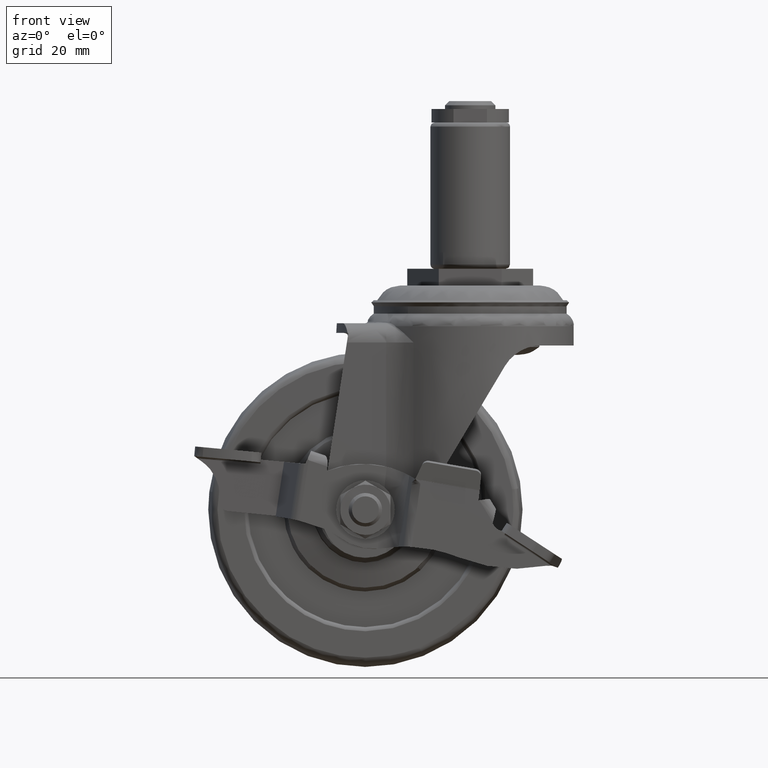
[diagram: clean part render]
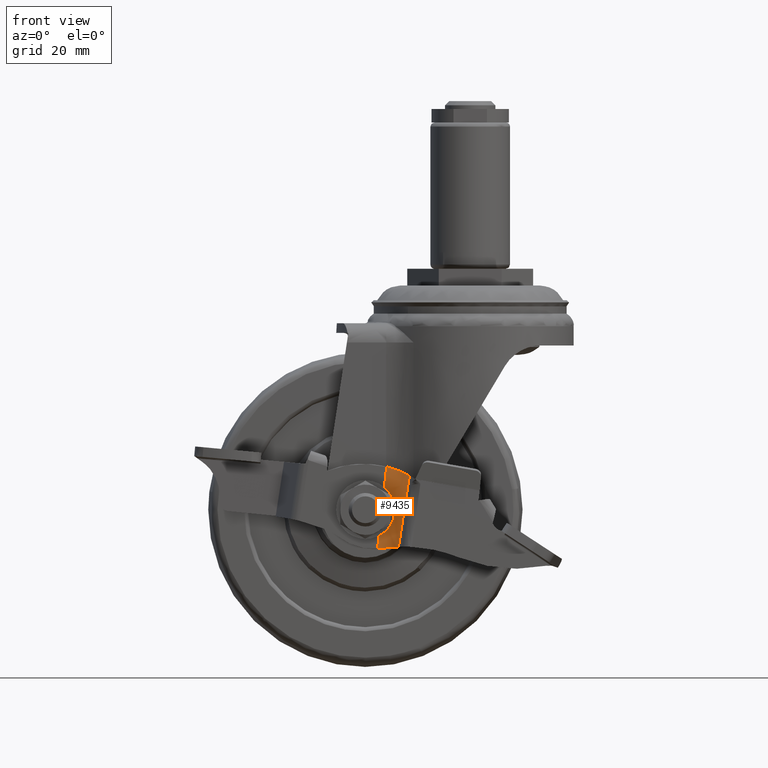
[diagram: same view with one face highlighted and labeled with its STEP entity id]
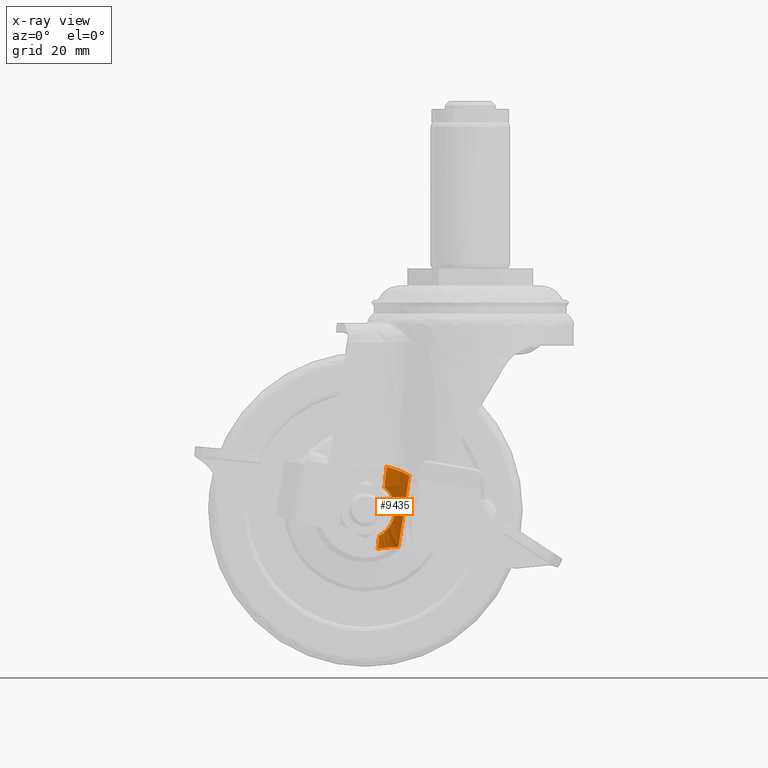
[diagram: x-ray of the same camera — body ghosted, the highlighted face saturated]
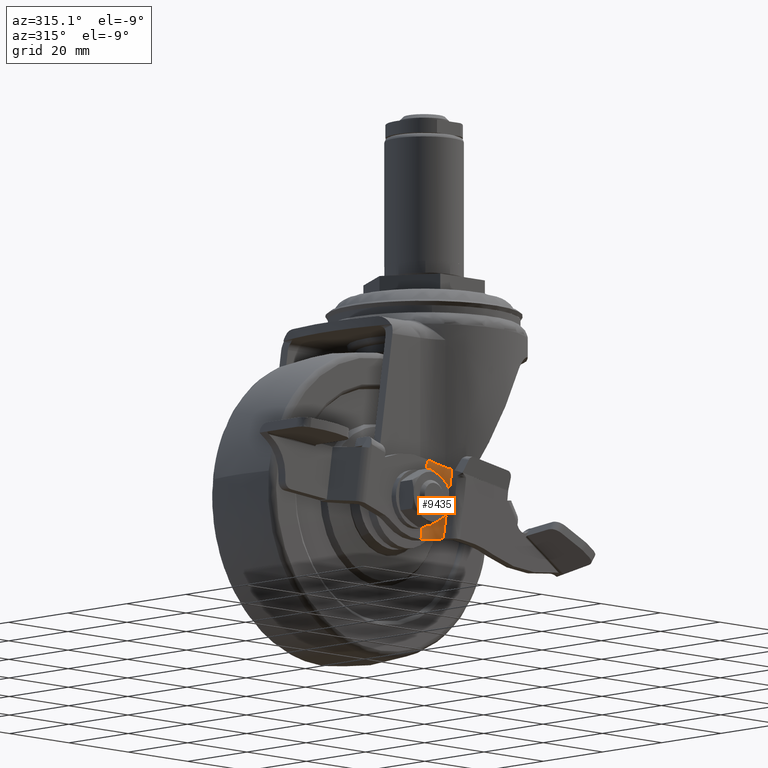
[diagram: same view with one face highlighted and labeled with its STEP entity id]
A machine part, front view. The second image highlights one B-rep face of the part: STEP entity #9435.
The next image is the same camera in x-ray: the body ghosted, the highlighted face saturated — about 0% of this face is hidden behind the body in this view.
A second angle (auxiliary view) of the same face is appended — the face is thin or edge-on in the first view.
In plain terms, the highlighted face is a freeform B-spline surface patch.
Its self-contained STEP definition (entity closure, byte-faithful):
#6737=CARTESIAN_POINT('',(-21.745604013476498,-21.108498999999998,-61.742636202991299));
#6738=VERTEX_POINT('',#6737);
#6739=CARTESIAN_POINT('',(-20.459070457783749,-21.108498999999998,-50.120264049916102));
#6740=VERTEX_POINT('',#6739);
#6741=CARTESIAN_POINT('',(-21.745604013476498,-21.108498999999998,-61.742636202991299));
#6742=CARTESIAN_POINT('',(-21.485670559131389,-21.108499000000009,-61.607128324095761));
#6743=CARTESIAN_POINT('',(-21.237933225885971,-21.122829572066902,-61.457436227735407));
#6744=CARTESIAN_POINT('',(-20.764866664508240,-21.171514825453681,-61.130971359457739));
#6745=CARTESIAN_POINT('',(-20.539548120724060,-21.205922414813660,-60.954192687952322));
#6746=CARTESIAN_POINT('',(-20.217901638973341,-21.267438432920141,-60.668529527498833));
#6747=CARTESIAN_POINT('',(-20.113417334435610,-21.289602961595619,-60.569881392575383));
#6748=CARTESIAN_POINT('',(-19.909940264450000,-21.336440625701812,-60.365560540236793));
#6749=CARTESIAN_POINT('',(-19.811666877701299,-21.360950088913459,-60.260593173592852));
#6750=CARTESIAN_POINT('',(-19.528114402450530,-21.436106407267172,-59.938677710416577));
#6751=CARTESIAN_POINT('',(-19.353475128825821,-21.488499181639710,-59.714177583846059));
#6752=CARTESIAN_POINT('',(-19.031845494955419,-21.591383280417968,-59.244818771702448));
#6753=CARTESIAN_POINT('',(-18.884854956202300,-21.641893313666849,-58.999964266961513));
#6754=CARTESIAN_POINT('',(-18.718761479908110,-21.699962907650988,-58.680069095515996));
#6755=CARTESIAN_POINT('',(-18.686470383820570,-21.711308966750050,-58.615465085497277));
#6756=CARTESIAN_POINT('',(-18.624102208808619,-21.733249498856779,-58.485750537069080));
#6757=CARTESIAN_POINT('',(-18.593970390725829,-21.743863086211469,-58.420536010474912));
#6758=CARTESIAN_POINT('',(-18.506697014237300,-21.774521059251001,-58.223820865732819));
#6759=CARTESIAN_POINT('',(-18.452674147487478,-21.793380377052639,-58.091249513053533));
#6760=CARTESIAN_POINT('',(-18.302932927468770,-21.844400962666828,-57.689221792678353));
#6761=CARTESIAN_POINT('',(-18.219490266964439,-21.870965321006150,-57.415463995793850));
#6762=CARTESIAN_POINT('',(-18.119254635683621,-21.897040452663340,-56.995868266653417));
#6763=CARTESIAN_POINT('',(-18.090010361922371,-21.903446554365161,-56.854506782694557));
#6764=CARTESIAN_POINT('',(-18.052559912279250,-21.909396797219848,-56.640148053195723));
#6765=CARTESIAN_POINT('',(-18.041146621709121,-21.910771089252890,-56.568308857656397));
#6766=CARTESIAN_POINT('',(-18.020498752758630,-21.912271749643448,-56.423843328521492));
#6767=CARTESIAN_POINT('',(-18.011253524858159,-21.912395266381900,-56.351089315960117));
#6768=CARTESIAN_POINT('',(-17.970884507845231,-21.909874528576150,-55.988283195243518));
#6769=CARTESIAN_POINT('',(-17.956940657065910,-21.897816200378919,-55.699340178410111));
#6770=CARTESIAN_POINT('',(-17.964170017800178,-21.856217597230209,-55.123811381886860));
#6771=CARTESIAN_POINT('',(-17.985345633581950,-21.826687673902359,-54.837224870852701));
#6772=CARTESIAN_POINT('',(-18.033869651603911,-21.781215189678200,-54.480285142227743));
#6773=CARTESIAN_POINT('',(-18.044681453355089,-21.771695154751921,-54.408961798784247));
#6774=CARTESIAN_POINT('',(-18.068539173637468,-21.751872445088679,-54.266439602444841));
#6775=CARTESIAN_POINT('',(-18.081608806984399,-21.741552891181911,-54.195132811940923));
#6776=CARTESIAN_POINT('',(-18.123943823625439,-21.709723170542240,-53.982662934077823));
#6777=CARTESIAN_POINT('',(-18.156360631598041,-21.687311085652599,-53.842686052307478));
#6778=CARTESIAN_POINT('',(-18.265895162149562,-21.617583306910610,-53.427467892486924));
#6779=CARTESIAN_POINT('',(-18.355238815074831,-21.567774716585930,-53.156919132834403));
#6780=CARTESIAN_POINT('',(-18.513654434087790,-21.492348519207550,-52.759700565948762));
#6781=CARTESIAN_POINT('',(-18.570540964454619,-21.467087165583969,-52.628733628535052));
#6782=CARTESIAN_POINT('',(-18.662117857604031,-21.429564298219571,-52.434387750299912));
#6783=CARTESIAN_POINT('',(-18.693685632355251,-21.417118398054210,-52.369956844511890));
#6784=CARTESIAN_POINT('',(-18.758938421822229,-21.392444769725689,-52.241791683121882));
#6785=CARTESIAN_POINT('',(-18.792665453350089,-21.380203863978721,-52.177987069543363));
#6786=CARTESIAN_POINT('',(-18.965566606572679,-21.320168083959398,-51.862697844997761));
#6787=CARTESIAN_POINT('',(-19.118149298611421,-21.275604016234450,-51.620962303657670));
#6788=CARTESIAN_POINT('',(-19.451548952707888,-21.199054129606239,-51.157444059211990));
#6789=CARTESIAN_POINT('',(-19.632363244335728,-21.167036168026190,-50.935663938941701));
#6790=CARTESIAN_POINT('',(-19.925696735341539,-21.133079074124741,-50.618010816989212));
#6791=CARTESIAN_POINT('',(-20.027172014495420,-21.124112365713440,-50.514637559361432));
#6792=CARTESIAN_POINT('',(-20.237839407887499,-21.111811225242281,-50.313027536907697));
#6793=CARTESIAN_POINT('',(-20.347063462573150,-21.108498999999998,-50.214806956520803));
#6794=CARTESIAN_POINT('',(-20.459070457783749,-21.108498999999998,-50.120264049916102));
#6795=B_SPLINE_CURVE_WITH_KNOTS('',3,(#6741,#6742,#6743,#6744,#6745,#6746,#6747,#6748,#6749,#6750,#6751,#6752,#6753,#6754,#6755,#6756,#6757,#6758,#6759,#6760,#6761,#6762,#6763,#6764,#6765,#6766,#6767,#6768,#6769,#6770,#6771,#6772,#6773,#6774,#6775,#6776,#6777,#6778,#6779,#6780,#6781,#6782,#6783,#6784,#6785,#6786,#6787,#6788,#6789,#6790,#6791,#6792,#6793,#6794),.UNSPECIFIED.,.F.,.U.,(4,2,2,2,2,2,2,2,2,2,2,2,2,2,2,2,2,2,2,2,2,2,2,2,2,2,4),(0.0,0.062499999999998,0.124999999999996,0.156249999999995,0.187499999999994,0.249999999999993,0.312499999999992,0.328124999999992,0.343749999999991,0.374999999999991,0.437499999999989,0.468749999999989,0.484374999999988,0.499999999999988,0.562499999999988,0.624999999999988,0.640624999999989,0.656249999999990,0.687499999999991,0.749999999999993,0.781249999999994,0.796874999999995,0.812499999999997,0.874999999999998,0.937500000000000,0.968750000000000,1.0),.UNSPECIFIED.);
#6796=EDGE_CURVE('',#6738,#6740,#6795,.T.);
#8390=CARTESIAN_POINT('',(-20.947020642657399,-21.213676028474151,-64.702937689590399));
#8391=VERTEX_POINT('',#8390);
#8432=CARTESIAN_POINT('',(-17.105864167398948,-23.605599016253400,-64.356825589758714));
#8433=VERTEX_POINT('',#8432);
#8441=CARTESIAN_POINT('',(-17.105864167398948,-23.605599016253400,-64.356825589758714));
#8442=CARTESIAN_POINT('',(-17.337932729469610,-23.290645838758518,-64.364890879471801));
#8443=CARTESIAN_POINT('',(-17.596004594315911,-23.003756217377781,-64.376154862070877));
#8444=CARTESIAN_POINT('',(-18.019737535538152,-22.613117676293729,-64.400265173063531));
#8445=CARTESIAN_POINT('',(-18.167129645456470,-22.489567823842439,-64.409508932560698));
#8446=CARTESIAN_POINT('',(-18.397511323584851,-22.314337001757050,-64.425545998525138));
#8447=CARTESIAN_POINT('',(-18.475856595151370,-22.257611721294019,-64.431254095978673));
#8448=CARTESIAN_POINT('',(-18.635692561588460,-22.147581065439191,-64.443462452523377));
#8449=CARTESIAN_POINT('',(-18.717403885811990,-22.094141450705418,-64.449981388619321));
#8450=CARTESIAN_POINT('',(-19.131149295503459,-21.837410367160359,-64.484500072205520));
#8451=CARTESIAN_POINT('',(-19.476182276095621,-21.666479958605141,-64.518028238095226));
#8452=CARTESIAN_POINT('',(-20.013471056630831,-21.459130220325122,-64.578963469879213));
#8453=CARTESIAN_POINT('',(-20.195880343099059,-21.398242861548610,-64.601051364812378));
#8454=CARTESIAN_POINT('',(-20.474499477888362,-21.319404667650449,-64.637103449421772));
#8455=CARTESIAN_POINT('',(-20.568336464061801,-21.295181734445119,-64.649625677147853));
#8456=CARTESIAN_POINT('',(-20.757063983567541,-21.251118191818762,-64.675602511385179));
#8457=CARTESIAN_POINT('',(-20.851838805867828,-21.231297358510918,-64.689040016094623));
#8458=CARTESIAN_POINT('',(-20.947020642657399,-21.213676028474151,-64.702937689590399));
#8459=B_SPLINE_CURVE_WITH_KNOTS('',3,(#8441,#8442,#8443,#8444,#8445,#8446,#8447,#8448,#8449,#8450,#8451,#8452,#8453,#8454,#8455,#8456,#8457,#8458),.UNSPECIFIED.,.F.,.U.,(4,2,2,2,2,2,2,2,4),(0.0,0.249999999999999,0.375000000000001,0.437500000000001,0.500000000000001,0.750000000000001,0.875000000000000,0.937500000000000,1.0),.UNSPECIFIED.);
#8460=EDGE_CURVE('',#8433,#8391,#8459,.T.);
#8763=CARTESIAN_POINT('',(-19.920985990276598,-21.108498999999998,-45.259280903782887));
#8764=VERTEX_POINT('',#8763);
#8774=CARTESIAN_POINT('',(-14.514310920020700,-23.965653208361999,-47.365666049277699));
#8775=VERTEX_POINT('',#8774);
#8776=CARTESIAN_POINT('',(-19.920985990276598,-21.108498999999998,-45.259280903782887));
#8777=CARTESIAN_POINT('',(-19.647534282262260,-21.108498999999998,-45.327844062590323));
#8778=CARTESIAN_POINT('',(-19.378104098073219,-21.125163747341681,-45.400711504020322));
#8779=CARTESIAN_POINT('',(-18.846868147368610,-21.190171009829889,-45.554561986954219));
#8780=CARTESIAN_POINT('',(-18.585063685189631,-21.238519055449292,-45.635546356664811));
#8781=CARTESIAN_POINT('',(-18.197942699613840,-21.334662348109038,-45.762744662624073));
#8782=CARTESIAN_POINT('',(-18.069835055442422,-21.370657759286360,-45.806097634206601));
#8783=CARTESIAN_POINT('',(-17.879071413857019,-21.430654071383412,-45.872509220892532));
#8784=CARTESIAN_POINT('',(-17.815615852461988,-21.451690325362520,-45.894913125094462));
#8785=CARTESIAN_POINT('',(-17.689766016652548,-21.495576308198331,-45.939959340565672));
#8786=CARTESIAN_POINT('',(-17.627375833625710,-21.518419987783250,-45.962598848372409));
#8787=CARTESIAN_POINT('',(-17.318045721787460,-21.637077150353250,-46.076334413968482));
#8788=CARTESIAN_POINT('',(-17.078940934211801,-21.746153968881519,-46.169047975141922));
#8789=CARTESIAN_POINT('',(-16.616555225737461,-21.991833900383298,-46.356756814292680));
#8790=CARTESIAN_POINT('',(-16.393276174547900,-22.128437744701799,-46.451755719292017));
#8791=CARTESIAN_POINT('',(-16.070045484541499,-22.354391921324918,-46.594984782441223));
#8792=CARTESIAN_POINT('',(-15.964131474431600,-22.433326562446869,-46.642905095862112));
#8793=CARTESIAN_POINT('',(-15.756764352590450,-22.598010948572949,-46.738555952015020));
#8794=CARTESIAN_POINT('',(-15.655964518919580,-22.683229102021290,-46.785982048488961));
#8795=CARTESIAN_POINT('',(-15.361965695965820,-22.947408253042632,-46.926783005337583));
#8796=CARTESIAN_POINT('',(-15.177136465335030,-23.134860427123911,-47.018690549811488));
#8797=CARTESIAN_POINT('',(-14.829266789783780,-23.532705136338290,-47.196896604077217));
#8798=CARTESIAN_POINT('',(-14.666224133193520,-23.743092881133379,-47.283200955119497));
#8799=CARTESIAN_POINT('',(-14.514310920020639,-23.965653208361950,-47.365666049277699));
#8800=B_SPLINE_CURVE_WITH_KNOTS('',3,(#8776,#8777,#8778,#8779,#8780,#8781,#8782,#8783,#8784,#8785,#8786,#8787,#8788,#8789,#8790,#8791,#8792,#8793,#8794,#8795,#8796,#8797,#8798,#8799),.UNSPECIFIED.,.F.,.U.,(4,2,2,2,2,2,2,2,2,2,2,4),(0.0,0.125000000000003,0.250000000000006,0.312500000000007,0.343750000000007,0.375000000000007,0.500000000000007,0.625000000000007,0.687500000000006,0.750000000000005,0.875000000000003,1.0),.UNSPECIFIED.);
#8801=EDGE_CURVE('',#8764,#8775,#8800,.T.);
#8879=CARTESIAN_POINT('',(-22.086442255371701,-21.108498999999998,-64.821723315626500));
#8880=VERTEX_POINT('',#8879);
#8881=CARTESIAN_POINT('',(-20.947020642657399,-21.213676028474151,-64.702937689590399));
#8882=CARTESIAN_POINT('',(-21.320769556321029,-21.144006214934720,-64.757699736446739));
#8883=CARTESIAN_POINT('',(-21.703097975947461,-21.108733825274431,-64.797549093342866));
#8884=CARTESIAN_POINT('',(-22.086442255371701,-21.108498999999998,-64.821723315626500));
#8885=B_SPLINE_CURVE_WITH_KNOTS('',3,(#8881,#8882,#8883,#8884),.UNSPECIFIED.,.F.,.U.,(4,4),(6.931329E-009,1.152350040541469),.UNSPECIFIED.);
#8886=EDGE_CURVE('',#8391,#8880,#8885,.T.);
#9106=CARTESIAN_POINT('',(-14.514310920020700,-23.965653208361999,-47.365666049277699));
#9107=CARTESIAN_POINT('',(-17.105864167398948,-23.605599016253400,-64.356825589758714));
#9108=QUASI_UNIFORM_CURVE('',1,(#9106,#9107),.UNSPECIFIED.,.F.,.U.);
#9109=EDGE_CURVE('',#8775,#8433,#9108,.T.);
#9129=CARTESIAN_POINT('',(-22.086442255371701,-21.108498999999998,-64.821723315626500));
#9130=CARTESIAN_POINT('',(-21.745604013476498,-21.108498999999998,-61.742636202991299));
#9131=QUASI_UNIFORM_CURVE('',1,(#9129,#9130),.UNSPECIFIED.,.F.,.U.);
#9132=EDGE_CURVE('',#8880,#6738,#9131,.T.);
#9135=CARTESIAN_POINT('',(-20.459070457783749,-21.108498999999998,-50.120264049916102));
#9136=CARTESIAN_POINT('',(-19.920985990276598,-21.108498999999998,-45.259280903782887));
#9137=QUASI_UNIFORM_CURVE('',1,(#9135,#9136),.UNSPECIFIED.,.F.,.U.);
#9138=EDGE_CURVE('',#6740,#8764,#9137,.T.);
#9388=CARTESIAN_POINT('',(-14.292461904264931,-23.996475522438949,-45.911143737449002));
#9389=CARTESIAN_POINT('',(-16.371286169462216,-21.108499000000009,-45.626378243888254));
#9390=CARTESIAN_POINT('',(-19.907993252686030,-21.108498999999998,-45.141906249311837));
#9391=CARTESIAN_POINT('',(-14.298395880268830,-23.995651092943529,-45.950049028356560));
#9392=CARTESIAN_POINT('',(-16.376626704339884,-21.108499000000009,-45.665364826686655));
#9393=CARTESIAN_POINT('',(-19.912324165216219,-21.108498999999998,-45.181031134135523));
#9394=CARTESIAN_POINT('',(-14.304329856272741,-23.994826663448109,-45.988954319264117));
#9395=CARTESIAN_POINT('',(-16.381967239217545,-21.108499000000009,-45.704351409485056));
#9396=CARTESIAN_POINT('',(-19.916655077746409,-21.108498999999998,-45.220156018959209));
#9397=CARTESIAN_POINT('',(-14.310263832276640,-23.994002233952699,-46.027859610171703));
#9398=CARTESIAN_POINT('',(-16.387307774095216,-21.108499000000009,-45.743337992283458));
#9399=CARTESIAN_POINT('',(-19.920985990276598,-21.108498999999998,-45.259280903782887));
#9400=CARTESIAN_POINT('',(-15.299259832927399,-23.856597318050198,-52.512074761434398));
#9401=CARTESIAN_POINT('',(-17.277396920373661,-21.108499000000009,-52.241101792017005));
#9402=CARTESIAN_POINT('',(-20.642804745308300,-21.108498999999998,-51.780095041064087));
#9403=CARTESIAN_POINT('',(-16.288255833578152,-23.719192402147701,-58.996289912697193));
#9404=CARTESIAN_POINT('',(-18.167486066652106,-21.108499000000009,-58.738865591750567));
#9405=CARTESIAN_POINT('',(-21.364623500339999,-21.108498999999998,-58.300909178345300));
#9406=CARTESIAN_POINT('',(-17.277251834228899,-23.581787486245201,-65.480505063959896));
#9407=CARTESIAN_POINT('',(-19.057575212930555,-21.108499000000009,-65.236629391484243));
#9408=CARTESIAN_POINT('',(-22.086442255371701,-21.108498999999998,-64.821723315626599));
#9409=CARTESIAN_POINT('',(-17.283185810232808,-23.580963056749781,-65.519410354867503));
#9410=CARTESIAN_POINT('',(-19.062915747808223,-21.108499000000009,-65.275615974282644));
#9411=CARTESIAN_POINT('',(-22.090773167901890,-21.108498999999998,-64.860848200450278));
#9412=CARTESIAN_POINT('',(-17.289119786236711,-23.580138627254360,-65.558315645775082));
#9413=CARTESIAN_POINT('',(-19.068256282685905,-21.108499000000009,-65.314602557081059));
#9414=CARTESIAN_POINT('',(-22.095104080432080,-21.108498999999998,-64.899973085273984));
#9415=CARTESIAN_POINT('',(-17.295053762240610,-23.579314197758951,-65.597220936682660));
#9416=CARTESIAN_POINT('',(-19.073596817563566,-21.108499000000009,-65.353589139879475));
#9417=CARTESIAN_POINT('',(-22.099434992962269,-21.108498999999998,-64.939097970097663));
#9425=(BOUNDED_SURFACE()B_SPLINE_SURFACE(2,3,((#9388,#9391,#9394,#9397,#9400,#9403,#9406,#9409,#9412,#9415),(#9389,#9392,#9395,#9398,#9401,#9404,#9407,#9410,#9413,#9416),(#9390,#9393,#9396,#9399,#9402,#9405,#9408,#9411,#9414,#9417)),.UNSPECIFIED.,.F.,.F.,.U.)B_SPLINE_SURFACE_WITH_KNOTS((3,3),(4,3,3,4),(0.0,6.727967144461162),(0.0,0.118091577778901,19.800021207597830,19.918112785376781),.UNSPECIFIED.)GEOMETRIC_REPRESENTATION_ITEM()RATIONAL_B_SPLINE_SURFACE(((1.0,1.0,1.0,1.0,1.0,1.0,1.0,1.0,1.0,1.0),(0.891006524188368,0.891006524188368,0.891006524188368,0.891006524188368,0.891006524188368,0.891006524188368,0.891006524188368,0.891006524188368,0.891006524188368,0.891006524188368),(1.0,1.0,1.0,1.0,1.0,1.0,1.0,1.0,1.0,1.0)))REPRESENTATION_ITEM('')SURFACE());
#9426=ORIENTED_EDGE('',*,*,#6796,.F.);
#9427=ORIENTED_EDGE('',*,*,#9132,.F.);
#9428=ORIENTED_EDGE('',*,*,#8886,.F.);
#9429=ORIENTED_EDGE('',*,*,#8460,.F.);
#9430=ORIENTED_EDGE('',*,*,#9109,.F.);
#9431=ORIENTED_EDGE('',*,*,#8801,.F.);
#9432=ORIENTED_EDGE('',*,*,#9138,.F.);
#9433=EDGE_LOOP('',(#9426,#9427,#9428,#9429,#9430,#9431,#9432));
#9434=FACE_OUTER_BOUND('',#9433,.T.);
#9435=ADVANCED_FACE('',(#9434),#9425,.T.);